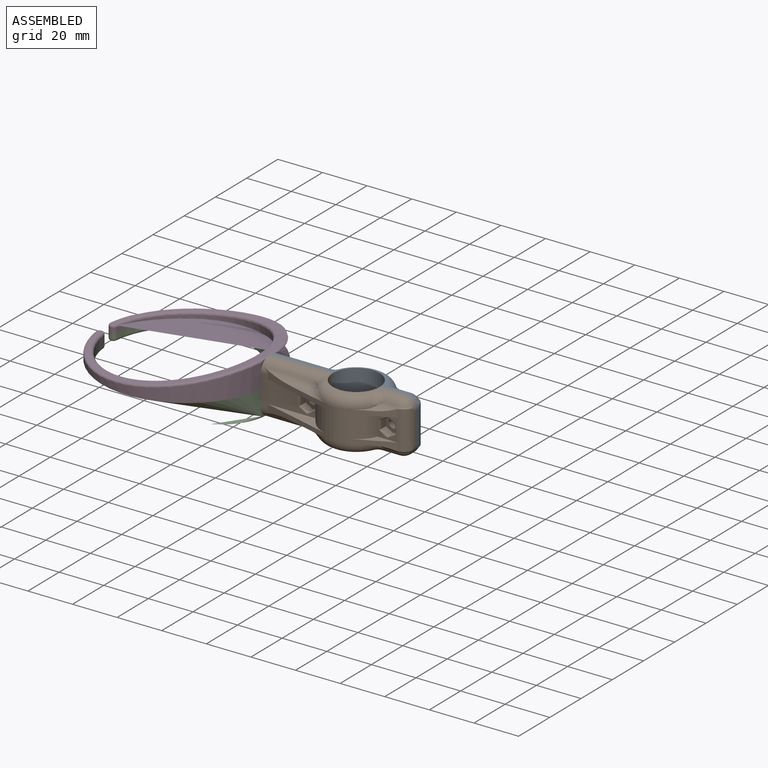
[diagram: assembled view]
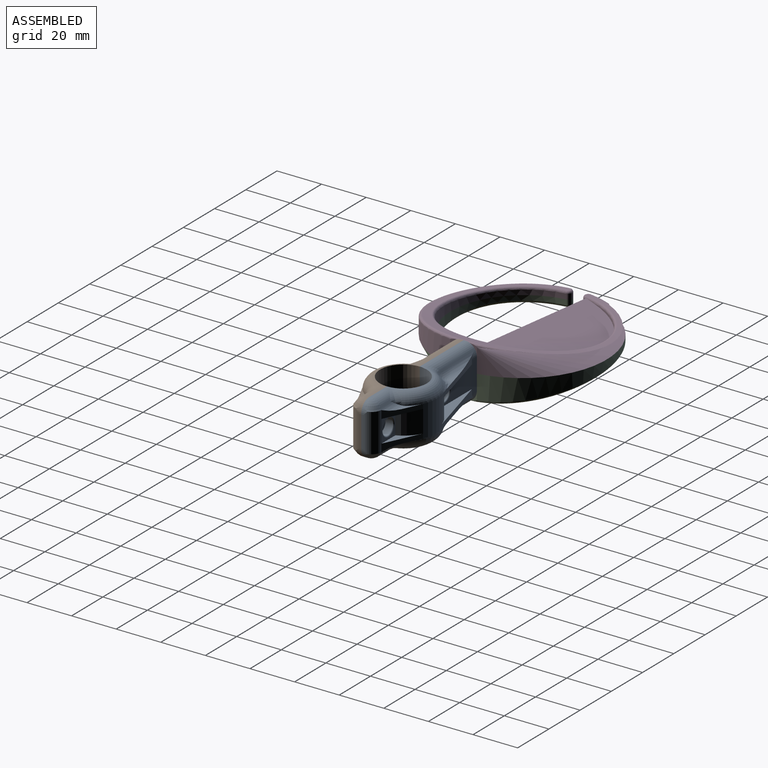
[diagram: assembled view, second angle]
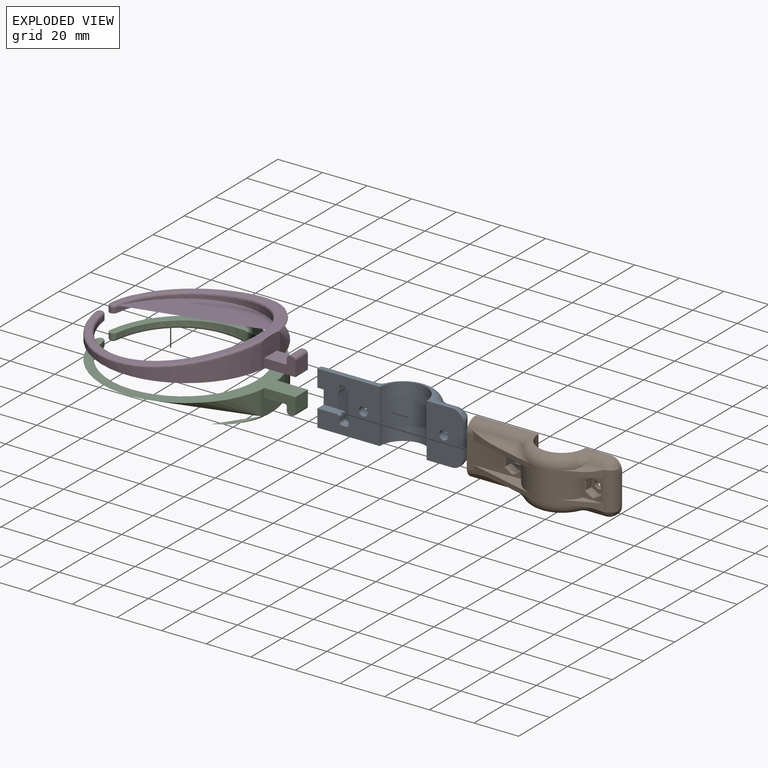
[diagram: exploded view]
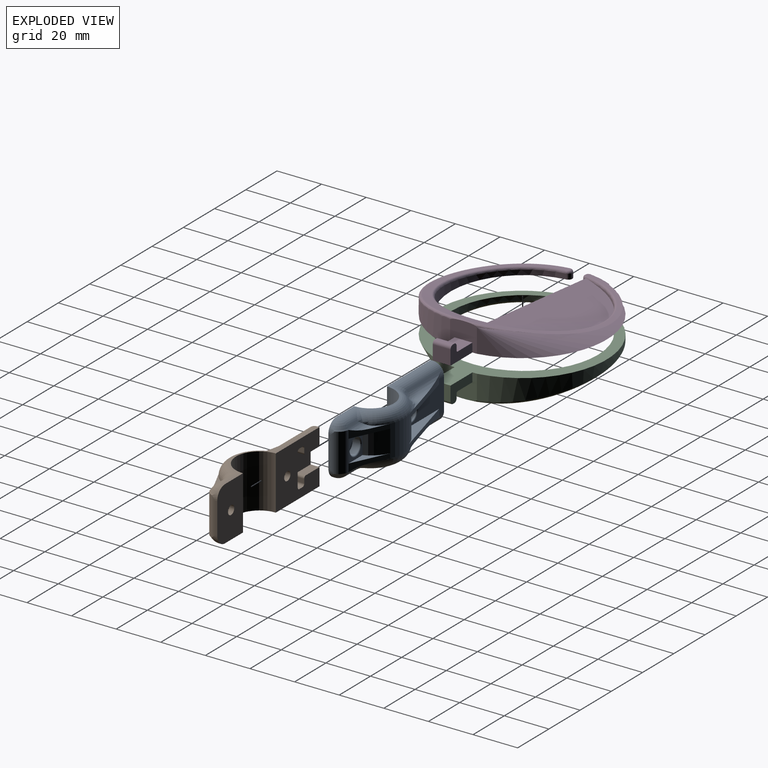
[diagram: exploded view, second angle]
ASSEMBLY  parts=4 mates=3
PART A: 76 faces, bbox 72.4x18.8x26.5 mm
  f0: cylinder r=15mm len=27.5mm, axis (0,0,-1), area 391mm2, adj f2,f4,f17,f18,f46,f49,f51,f52
  f1: cylinder r=5mm len=17.19mm, axis (0,0,1), area 127.7mm2, adj f2,f12,f19,f22,f31,f46,f48,f54
  f2: plane 10x8.25mm, normal (0,1,0), area 32.4mm2, adj f0,f1,f30,f46,f54
  f3: plane 24x6mm, normal (-1,0,0), area 99.7mm2, adj f4,f7,f8,f9,f15,f16,f32,f44
  f4: plane 24.75x14mm, normal (0,1,0), area 209.8mm2, adj f0,f3,f15,f16,f29,f51,f52,f57
  f5: cylinder r=2mm len=4mm, axis (0,1,0), area 27.6mm2, adj f9,f28
  f6: cylinder r=2mm len=4mm, axis (0,1,0), area 27.6mm2, adj f11,f26
  f7: plane 28.05x1mm, normal (0,0,1), area 28mm2, adj f3,f9,f10,f15
  f8: plane 28.05x1mm, normal (0,0,-1), area 28mm2, adj f3,f9,f10,f16
  f9: plane 28x24mm, normal (0,-1,0), area 508.7mm2, adj f3,f5,f7,f8,f10,f32,f33,f34
  f10: cylinder r=10.5mm len=24mm, axis (0,0,-1), area 790.2mm2, adj f7,f8,f9,f11,f13,f14,f15,f16
  f11: plane 24x16.5mm, normal (0,-1,0), area 372.7mm2, adj f6,f10,f12,f13,f14,f19,f22
  f12: plane 14x1mm, normal (1,0,0), area 14mm2, adj f1,f11,f19,f22
  f13: plane 11.55x1mm, normal (0,0,1), area 11.5mm2, adj f10,f11,f19,f20
  f14: plane 11.55x1mm, normal (0,0,-1), area 11.5mm2, adj f10,f11,f21,f22
  f15: cylinder r=5mm len=28.08mm, axis (1,0,0), area 136.9mm2, adj f3,f4,f7,f10,f59,f68,f70
  f16: cylinder r=5mm len=28.08mm, axis (-1,0,0), area 136.9mm2, adj f3,f4,f8,f10,f51,f71,f72
  f17: torus R=10mm, axis (0,0,1), area 201.4mm2, adj f0,f10,f53,f63,f64,f66,f67,f68
  f18: torus R=10mm, axis (0,0,1), area 201.4mm2, adj f0,f10,f47,f60,f61,f72,f74,f75
  f19: cylinder r=5mm len=5mm, axis (0,-1,0), area 9.9mm2, adj f1,f11,f12,f13,f23,f65
  f20: cylinder r=5mm len=11.58mm, axis (1,0,0), area 44.5mm2, adj f10,f13,f23,f63,f64
  f21: cylinder r=5mm len=11.58mm, axis (-1,0,0), area 44.5mm2, adj f10,f14,f24,f60,f61
  f22: cylinder r=5mm len=5mm, axis (0,1,0), area 9.9mm2, adj f1,f11,f12,f14,f24,f62
  f23: sphere r=5mm, area 23.6mm2, adj f19,f20,f65
  f24: sphere r=5mm, area 12.8mm2, adj f21,f22,f62
  f25: cylinder r=3.5mm len=7mm, axis (0,1,0), area 72.6mm2, adj f26,f30,f31
  f26: plane 7x7mm, normal (0,1,0), area 25.9mm2, adj f6,f25
  f27: cylinder r=3.5mm len=7mm, axis (0,1,0), area 72.6mm2, adj f28,f29
  f28: plane 7x7mm, normal (0,1,0), area 25.9mm2, adj f5,f27
  f29: torus R=4mm, axis (0,1,0), area 18.2mm2, adj f4,f27
  f30: torus R=4mm, axis (0,1,0), area 16.7mm2, adj f2,f25,f31
  f31: bspline ~3.6x0.89mm, area 1.5mm2, adj f1,f25,f30
  f32: plane 8.73x4mm, normal (0,0,1), area 34.9mm2, adj f3,f9,f33,f45
  f33: cylinder r=1.07mm len=4mm, axis (0,-1,0), area 6.7mm2, adj f9,f32,f34,f45
  f34: plane 4x1.86mm, normal (1,0,0), area 7.5mm2, adj f9,f33,f35,f45
  f35: cylinder r=1.07mm len=4mm, axis (0,-1,0), area 6.7mm2, adj f9,f34,f36,f45
  f36: plane 4x2.06mm, normal (0,0,1), area 8.3mm2, adj f9,f35,f37,f45
  f37: cylinder r=1.07mm len=4mm, axis (0,-1,0), area 6.7mm2, adj f9,f36,f38,f45
  f38: plane 14.26x4mm, normal (-1,0,0), area 57.1mm2, adj f9,f37,f39,f45
  f39: cylinder r=1.07mm len=4mm, axis (0,-1,0), area 6.7mm2, adj f9,f38,f40,f45
  f40: plane 4x2.06mm, normal (0,0,-1), area 8.3mm2, adj f9,f39,f41,f45
  f41: cylinder r=1.07mm len=4mm, axis (0,-1,0), area 6.7mm2, adj f9,f40,f42,f45
  f42: plane 4x1.86mm, normal (1,0,0), area 7.5mm2, adj f9,f41,f43,f45
  f43: cylinder r=1.07mm len=4mm, axis (0,-1,0), area 6.7mm2, adj f9,f42,f44,f45
  f44: plane 8.73x4mm, normal (0,0,-1), area 34.9mm2, adj f3,f9,f43,f45
  f45: plane 16.4x14mm, normal (0,-1,0), area 150.7mm2, adj f3,f32,f33,f34,f35,f36,f37,f38
  f46: plane 16.02x7.51mm, normal (0,0,1), area 26.5mm2, adj f0,f1,f2,f48,f49
  f47: plane 8.13x3.81mm, normal (0,0,-1), area 4.9mm2, adj f18,f48,f49,f61
  f48: plane 16.47x8.01mm, normal (0.42,0.91,0), area 39.5mm2, adj f1,f46,f47,f49,f61,f62
  f49: plane 2x0.1mm, normal (0.4,0.91,0), area 0.2mm2, adj f0,f46,f47,f48
  f50: plane 7.16x1.93mm, normal (0,0,-1), area 5.6mm2, adj f51,f71,f75
  f51: plane 36.47x11.69mm, normal (-0.26,0.97,0), area 72.9mm2, adj f0,f4,f16,f50,f52,f71,f74
  f52: plane 31.45x8.48mm, normal (0,0,1), area 78.7mm2, adj f0,f4,f51
  f53: plane 8.13x3.81mm, normal (0,0,1), area 4.9mm2, adj f17,f55,f56,f64
  f54: plane 16.02x7.51mm, normal (0,0,-1), area 26.5mm2, adj f0,f1,f2,f55,f56
  f55: plane 16.47x8.01mm, normal (0.42,0.91,0), area 39.5mm2, adj f1,f53,f54,f56,f64,f65
  f56: plane 2x0.1mm, normal (0.4,0.91,0), area 0.2mm2, adj f0,f53,f54,f55
  f57: plane 31.45x8.48mm, normal (0,0,-1), area 78.7mm2, adj f0,f4,f59
  f58: plane 7.16x1.93mm, normal (0,0,1), area 5.6mm2, adj f59,f67,f70
  f59: plane 36.47x11.69mm, normal (-0.26,0.97,0), area 72.9mm2, adj f0,f4,f15,f57,f58,f66,f70
  f60: bspline ~7.25x6.76mm, area 22.4mm2, adj f10,f18,f21,f61
  f61: cylinder r=5mm len=10.53mm, axis (-1,0,0), area 30.2mm2, adj f18,f21,f47,f48,f60,f62
  f62: torus R=8.66mm, axis (0,0,1), area 7.5mm2, adj f1,f22,f24,f48,f61
  f63: bspline ~7.25x6.76mm, area 22.4mm2, adj f10,f17,f20,f64
  f64: cylinder r=5mm len=10.53mm, axis (1,0,0), area 30.2mm2, adj f17,f20,f53,f55,f63,f65
  f65: torus R=8.66mm, axis (0,0,1), area 7.5mm2, adj f1,f19,f23,f55,f64
  f66: bspline ~11.02x5.82mm, area 15.7mm2, adj f17,f59,f67
  f67: torus R=18.66mm, axis (0,0,1), area 10.7mm2, adj f17,f58,f66,f69
  f68: bspline ~6.79x6.35mm, area 17mm2, adj f10,f15,f17,f69
  f69: sphere r=5mm, area 8.4mm2, adj f67,f68,f70
  f70: cylinder r=5mm len=21.88mm, axis (1,0,0), area 72.5mm2, adj f15,f58,f59,f69
  f71: cylinder r=5mm len=21.88mm, axis (-1,0,0), area 72.5mm2, adj f16,f50,f51,f73
  f72: bspline ~6.58x6.16mm, area 17mm2, adj f10,f16,f18,f73
  f73: sphere r=5mm, area 12.8mm2, adj f71,f72,f75
  f74: bspline ~11.02x5.82mm, area 15.7mm2, adj f18,f51,f75
  f75: torus R=18.66mm, axis (0,0,1), area 10.7mm2, adj f18,f50,f73,f74
PART B: 95 faces, bbox 72.4x18.8x26.5 mm
  f0: plane 10x8.25mm, normal (0,1,0), area 31.4mm2, adj f4,f5,f39,f47,f83,f84,f85,f86
  f1: cylinder r=2mm len=4mm, axis (0,1,0), area 27.6mm2, adj f11,f82
  f2: plane 24.75x14mm, normal (0,1,0), area 209mm2, adj f4,f6,f15,f16,f43,f45,f50,f52
  f3: cylinder r=2mm len=4mm, axis (0,1,0), area 27.6mm2, adj f9,f75
  f4: cylinder r=15mm len=27.5mm, axis (0,0,-1), area 391mm2, adj f0,f2,f17,f18,f39,f42,f43,f45
  f5: cylinder r=5mm len=17.19mm, axis (0,0,1), area 127.9mm2, adj f0,f12,f19,f22,f39,f41,f47,f48
  f6: plane 24x6mm, normal (-1,0,0), area 99.7mm2, adj f2,f7,f8,f9,f15,f16,f25,f37
  f7: plane 28.05x1mm, normal (0,0,1), area 28mm2, adj f6,f9,f10,f15
  f8: plane 28.05x1mm, normal (0,0,-1), area 28mm2, adj f6,f9,f10,f16
  f9: plane 28x24mm, normal (0,-1,0), area 508.7mm2, adj f3,f6,f7,f8,f10,f25,f26,f27
  f10: cylinder r=10.5mm len=24mm, axis (0,0,-1), area 790.2mm2, adj f7,f8,f9,f11,f13,f14,f15,f16
  f11: plane 24x16.5mm, normal (0,-1,0), area 372.7mm2, adj f1,f10,f12,f13,f14,f19,f22
  f12: plane 14x1mm, normal (1,0,0), area 14mm2, adj f5,f11,f19,f22
  f13: plane 11.55x1mm, normal (0,0,1), area 11.5mm2, adj f10,f11,f19,f20
  f14: plane 11.55x1mm, normal (0,0,-1), area 11.5mm2, adj f10,f11,f21,f22
  f15: cylinder r=5mm len=28.08mm, axis (1,0,0), area 136.9mm2, adj f2,f6,f7,f10,f52,f61,f63
  f16: cylinder r=5mm len=28.08mm, axis (-1,0,0), area 136.9mm2, adj f2,f6,f8,f10,f45,f64,f65
  f17: torus R=10mm, axis (0,0,1), area 201.4mm2, adj f4,f10,f46,f56,f57,f59,f60,f61
  f18: torus R=10mm, axis (0,0,1), area 201.4mm2, adj f4,f10,f40,f53,f54,f65,f67,f68
  f19: cylinder r=5mm len=5mm, axis (0,-1,0), area 9.9mm2, adj f5,f11,f12,f13,f23,f58
  f20: cylinder r=5mm len=11.58mm, axis (1,0,0), area 44.5mm2, adj f10,f13,f23,f56,f57
  f21: cylinder r=5mm len=11.58mm, axis (-1,0,0), area 44.5mm2, adj f10,f14,f24,f53,f54
  f22: cylinder r=5mm len=5mm, axis (0,1,0), area 9.9mm2, adj f5,f11,f12,f14,f24,f55
  f23: sphere r=5mm, area 23.6mm2, adj f19,f20,f58
  f24: sphere r=5mm, area 12.8mm2, adj f21,f22,f55
  f25: plane 8.73x4mm, normal (0,0,1), area 34.9mm2, adj f6,f9,f26,f38
  f26: cylinder r=1.07mm len=4mm, axis (0,-1,0), area 6.7mm2, adj f9,f25,f27,f38
  f27: plane 4x1.86mm, normal (1,0,0), area 7.5mm2, adj f9,f26,f28,f38
  f28: cylinder r=1.07mm len=4mm, axis (0,-1,0), area 6.7mm2, adj f9,f27,f29,f38
  f29: plane 4x2.06mm, normal (0,0,1), area 8.3mm2, adj f9,f28,f30,f38
  f30: cylinder r=1.07mm len=4mm, axis (0,-1,0), area 6.7mm2, adj f9,f29,f31,f38
  f31: plane 14.26x4mm, normal (-1,0,0), area 57.1mm2, adj f9,f30,f32,f38
  f32: cylinder r=1.07mm len=4mm, axis (0,-1,0), area 6.7mm2, adj f9,f31,f33,f38
  f33: plane 4x2.06mm, normal (0,0,-1), area 8.3mm2, adj f9,f32,f34,f38
  f34: cylinder r=1.07mm len=4mm, axis (0,-1,0), area 6.7mm2, adj f9,f33,f35,f38
  f35: plane 4x1.86mm, normal (1,0,0), area 7.5mm2, adj f9,f34,f36,f38
  f36: cylinder r=1.07mm len=4mm, axis (0,-1,0), area 6.7mm2, adj f9,f35,f37,f38
  f37: plane 8.73x4mm, normal (0,0,-1), area 34.9mm2, adj f6,f9,f36,f38
  f38: plane 16.4x14mm, normal (0,-1,0), area 150.7mm2, adj f6,f25,f26,f27,f28,f29,f30,f31
  f39: plane 16.02x7.51mm, normal (0,0,1), area 26.5mm2, adj f0,f4,f5,f41,f42
  f40: plane 8.13x3.81mm, normal (0,0,-1), area 4.9mm2, adj f18,f41,f42,f54
  f41: plane 16.47x8.01mm, normal (0.42,0.91,0), area 39.5mm2, adj f5,f39,f40,f42,f54,f55
  f42: plane 2x0.1mm, normal (0.4,0.91,0), area 0.2mm2, adj f4,f39,f40,f41
  f43: plane 31.45x8.48mm, normal (0,0,1), area 78.7mm2, adj f2,f4,f45
  f44: plane 7.16x1.93mm, normal (0,0,-1), area 5.6mm2, adj f45,f64,f68
  f45: plane 36.47x11.69mm, normal (-0.26,0.97,0), area 72.9mm2, adj f2,f4,f16,f43,f44,f64,f67
  f46: plane 8.13x3.81mm, normal (0,0,1), area 4.9mm2, adj f17,f48,f49,f57
  f47: plane 16.02x7.51mm, normal (0,0,-1), area 26.5mm2, adj f0,f4,f5,f48,f49
  f48: plane 16.47x8.01mm, normal (0.42,0.91,0), area 39.5mm2, adj f5,f46,f47,f49,f57,f58
  f49: plane 2x0.1mm, normal (0.4,0.91,0), area 0.2mm2, adj f4,f46,f47,f48
  f50: plane 31.45x8.48mm, normal (0,0,-1), area 78.7mm2, adj f2,f4,f52
  f51: plane 7.16x1.93mm, normal (0,0,1), area 5.6mm2, adj f52,f60,f63
  f52: plane 36.47x11.69mm, normal (-0.26,0.97,0), area 72.9mm2, adj f2,f4,f15,f50,f51,f59,f63
  f53: bspline ~7.25x6.76mm, area 22.4mm2, adj f10,f18,f21,f54
  f54: cylinder r=5mm len=10.53mm, axis (-1,0,0), area 30.2mm2, adj f18,f21,f40,f41,f53,f55
  f55: torus R=8.66mm, axis (0,0,1), area 7.5mm2, adj f5,f22,f24,f41,f54
  f56: bspline ~7.25x6.76mm, area 22.4mm2, adj f10,f17,f20,f57
  f57: cylinder r=5mm len=10.53mm, axis (1,0,0), area 30.2mm2, adj f17,f20,f46,f48,f56,f58
  f58: torus R=8.66mm, axis (0,0,1), area 7.5mm2, adj f5,f19,f23,f48,f57
  f59: bspline ~11.02x5.82mm, area 15.7mm2, adj f17,f52,f60
  f60: torus R=18.66mm, axis (0,0,1), area 10.7mm2, adj f17,f51,f59,f62
  f61: bspline ~6.79x6.35mm, area 17mm2, adj f10,f15,f17,f62
  f62: sphere r=5mm, area 8.4mm2, adj f60,f61,f63
  f63: cylinder r=5mm len=21.88mm, axis (1,0,0), area 72.5mm2, adj f15,f51,f52,f62
  f64: cylinder r=5mm len=21.88mm, axis (-1,0,0), area 72.5mm2, adj f16,f44,f45,f66
  f65: bspline ~6.58x6.16mm, area 17mm2, adj f10,f16,f18,f66
  f66: sphere r=5mm, area 12.8mm2, adj f64,f65,f68
  f67: bspline ~11.02x5.82mm, area 15.7mm2, adj f18,f45,f68
  f68: torus R=18.66mm, axis (0,0,1), area 10.7mm2, adj f18,f44,f66,f67
  f69: plane 3.34x3.3mm, normal (0.5,0,0.87), area 12.7mm2, adj f70,f74,f75,f91
  f70: plane 3.86x3.3mm, normal (1,0,0), area 12.7mm2, adj f69,f71,f75,f89
  f71: plane 3.34x3.3mm, normal (0.5,0,-0.87), area 12.7mm2, adj f70,f72,f75,f90
  f72: plane 3.34x3.3mm, normal (-0.5,0,-0.87), area 12.7mm2, adj f71,f73,f75,f92
  f73: plane 3.86x3.3mm, normal (-1,0,0), area 12.7mm2, adj f72,f74,f75,f94
  f74: plane 3.34x3.3mm, normal (-0.5,0,0.87), area 12.7mm2, adj f69,f73,f75,f93
  f75: plane 7.71x6.68mm, normal (0,1,0), area 26.1mm2, adj f3,f69,f70,f71,f72,f73,f74
  f76: plane 3.34x3.3mm, normal (-0.5,0,0.87), area 12.7mm2, adj f77,f81,f82,f87
  f77: plane 3.34x3.3mm, normal (0.5,0,0.87), area 12.7mm2, adj f76,f78,f82,f85
  f78: plane 3.86x3.3mm, normal (1,0,0), area 12.7mm2, adj f77,f79,f82,f83
  f79: plane 3.34x3.3mm, normal (0.5,0,-0.87), area 12.7mm2, adj f78,f80,f82,f84
  f80: plane 3.34x3.3mm, normal (-0.5,0,-0.87), area 12.7mm2, adj f79,f81,f82,f86
  f81: plane 3.86x3.3mm, normal (-1,0,0), area 12.7mm2, adj f76,f80,f82,f88
  f82: plane 7.71x6.68mm, normal (0,1,0), area 26.1mm2, adj f1,f76,f77,f78,f79,f80,f81
  f83: cylinder r=0.5mm len=4.43mm, axis (0,0,-1), area 3.3mm2, adj f0,f78,f84,f85
  f84: cylinder r=0.5mm len=4.09mm, axis (-0.87,0,-0.5), area 3.3mm2, adj f0,f79,f83,f86
  f85: cylinder r=0.5mm len=4.09mm, axis (0.87,0,-0.5), area 3.3mm2, adj f0,f77,f83,f87
  f86: cylinder r=0.5mm len=4.09mm, axis (-0.87,0,0.5), area 3.3mm2, adj f0,f80,f84,f88
  f87: cylinder r=0.5mm len=4.09mm, axis (0.87,0,0.5), area 3.3mm2, adj f0,f76,f85,f88
  f88: cylinder r=0.5mm len=4.43mm, axis (0,0,1), area 3.3mm2, adj f0,f81,f86,f87
  f89: cylinder r=0.5mm len=4.43mm, axis (0,0,-1), area 3.3mm2, adj f2,f70,f90,f91
  f90: cylinder r=0.5mm len=4.09mm, axis (-0.87,0,-0.5), area 3.3mm2, adj f2,f71,f89,f92
  f91: cylinder r=0.5mm len=4.09mm, axis (0.87,0,-0.5), area 3.3mm2, adj f2,f69,f89,f93
  f92: cylinder r=0.5mm len=4.09mm, axis (-0.87,0,0.5), area 3.3mm2, adj f2,f72,f90,f94
  f93: cylinder r=0.5mm len=4.09mm, axis (0.87,0,0.5), area 3.3mm2, adj f2,f74,f91,f94
  f94: cylinder r=0.5mm len=4.43mm, axis (0,0,1), area 3.3mm2, adj f2,f73,f92,f93
PART C: 29 faces, bbox 189.6x176.4x112.2 mm
  f0: cylinder r=38mm len=75.25mm, axis (0,0,-1), area 357.9mm2, adj f9,f15,f19
  f1: cylinder r=38mm len=75.25mm, axis (0,0,-1), area 547.2mm2, adj f9,f15,f17,f24
  f2: cylinder r=1.77mm len=3.48mm, axis (0,0,-1), area 12.2mm2, adj f9,f24,f26,f28
  f3: cylinder r=33mm len=66mm, axis (0,0,-1), area 983.4mm2, adj f9,f18,f23,f28
  f4: cylinder r=1.77mm len=3.48mm, axis (0,0,-1), area 12.2mm2, adj f9,f19,f21,f23
  f5: plane 9.5x8mm, normal (0,0,1), area 76mm2, adj f6,f8,f14,f15
  f6: plane 14x8mm, normal (0,-1,0), area 70.7mm2, adj f5,f7,f9,f10,f11,f12,f13,f14
  f7: plane 8x6.5mm, normal (1,0,0), area 52mm2, adj f6,f8,f9,f13
  f8: plane 14x8mm, normal (0,1,0), area 70.7mm2, adj f5,f7,f9,f10,f11,f12,f13,f14
  f9: plane 89.26x76mm, normal (0,0,-1), area 1202.1mm2, adj f0,f1,f2,f3,f4,f6,f7,f8
  f10: plane 8x1.9mm, normal (-1,0,0), area 15.2mm2, adj f6,f8,f12,f14
  f11: plane 8x0.9mm, normal (0,0,1), area 7.2mm2, adj f6,f8,f12,f13
  f12: cylinder r=1.5mm len=8mm, axis (0,1,0), area 18.8mm2, adj f6,f8,f10,f11
  f13: cylinder r=1.5mm len=8mm, axis (0,-1,0), area 18.8mm2, adj f6,f7,f8,f11
  f14: cylinder r=0.6mm len=8mm, axis (0,1,0), area 7.5mm2, adj f5,f6,f8,f10
  f15: plane 112.38x112.1mm, normal (1,0,0), area 106.2mm2, adj f0,f1,f5,f6,f8,f9,f17
  f16: cylinder r=245.88mm len=74.01mm, axis (0,1,0), area 664.2mm2, adj f17,f18,f21,f26
  f17: bspline ~75.96x75.66mm, area 322.9mm2, adj f1,f15,f16,f20,f25
  f18: bspline ~67.96x67.4mm, area 303mm2, adj f3,f16,f22,f27
  f19: cylinder r=1mm len=2.41mm, axis (0,0,-1), area 0.3mm2, adj f0,f4,f9,f20
  f20: sphere r=1mm, area 0.1mm2, adj f17,f19,f21
  f21: bspline ~3.55x2.2mm, area 6.4mm2, adj f4,f16,f20,f22
  f22: sphere r=1mm, area 0.1mm2, adj f18,f21,f23
  f23: cylinder r=1mm len=2.36mm, axis (0,0,1), area 0.3mm2, adj f3,f4,f9,f22
  f24: cylinder r=1mm len=2.41mm, axis (0,0,-1), area 0.3mm2, adj f1,f2,f9,f25
  f25: sphere r=1mm, area 0.1mm2, adj f17,f24,f26
  f26: bspline ~3.55x2.2mm, area 6.4mm2, adj f2,f16,f25,f27
  f27: sphere r=1mm, area 0.1mm2, adj f18,f26,f28
  f28: cylinder r=1mm len=2.36mm, axis (0,0,1), area 0.3mm2, adj f2,f3,f9,f27
PART D: same geometry as C
PLACE A t=(53.12,-6.98,-22.92)mm
PLACE B rot(axis=(1,0,0),180deg) t=(53.12,-6.98,1.08)mm
PLACE C rot(axis=(1,0,0),180deg) t=(1.62,-6.98,-10.92)mm
PLACE D t=(1.62,-6.98,-10.92)mm
MATE fastened C.f9 <-> D.f9  axis (0,0,1) through (1.62,-6.98,-10.92)mm
MATE fastened C.f7 <-> A.f38  axis (1,0,0) through (1.62,-2.98,-10.92)mm
MATE fastened C.f7 <-> B.f31  axis (1,0,0) through (1.62,-10.98,-10.92)mm
